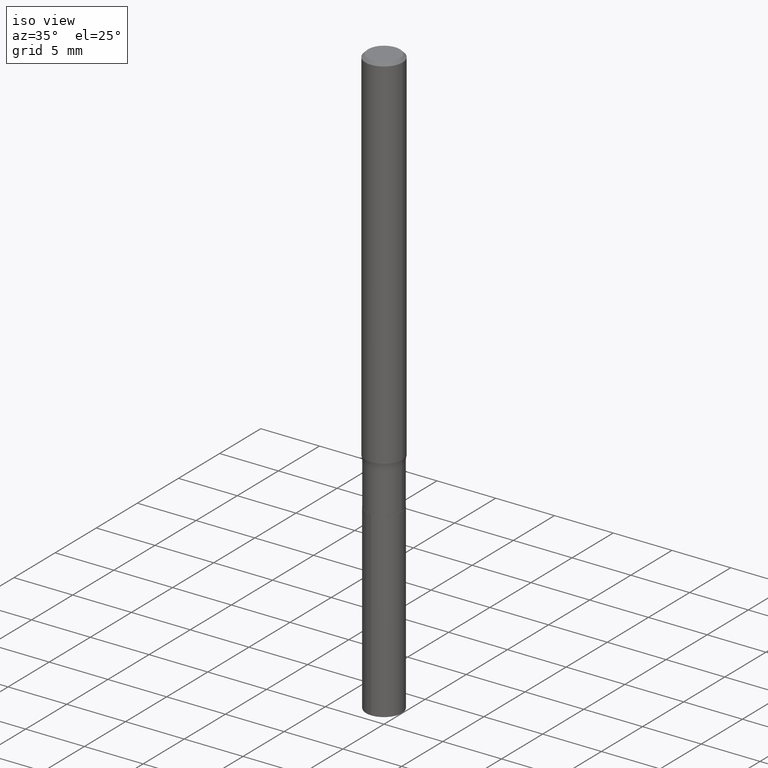
[diagram: clean part render]
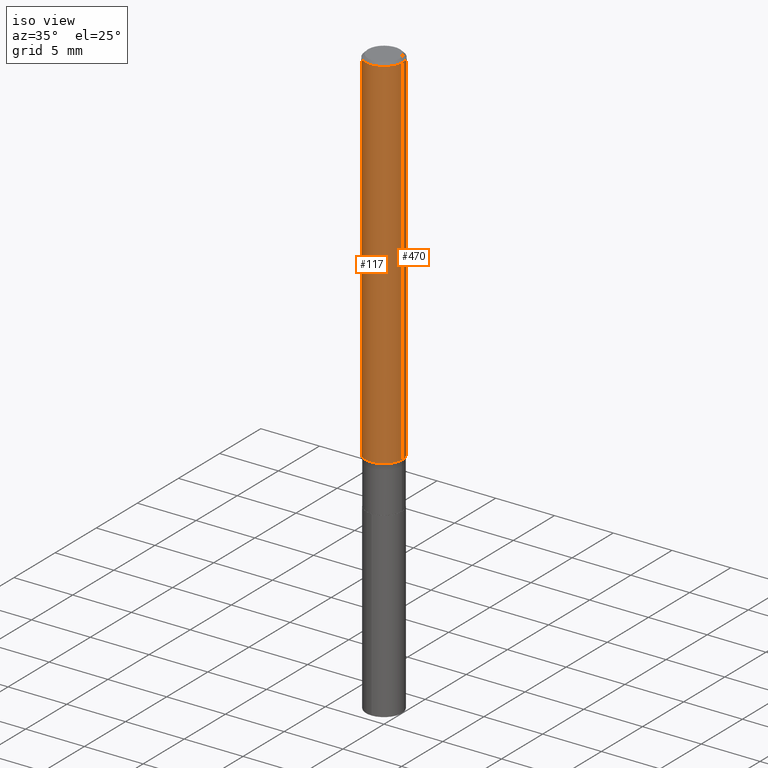
[diagram: same view with one multi-face feature highlighted, each face labeled with its STEP entity id]
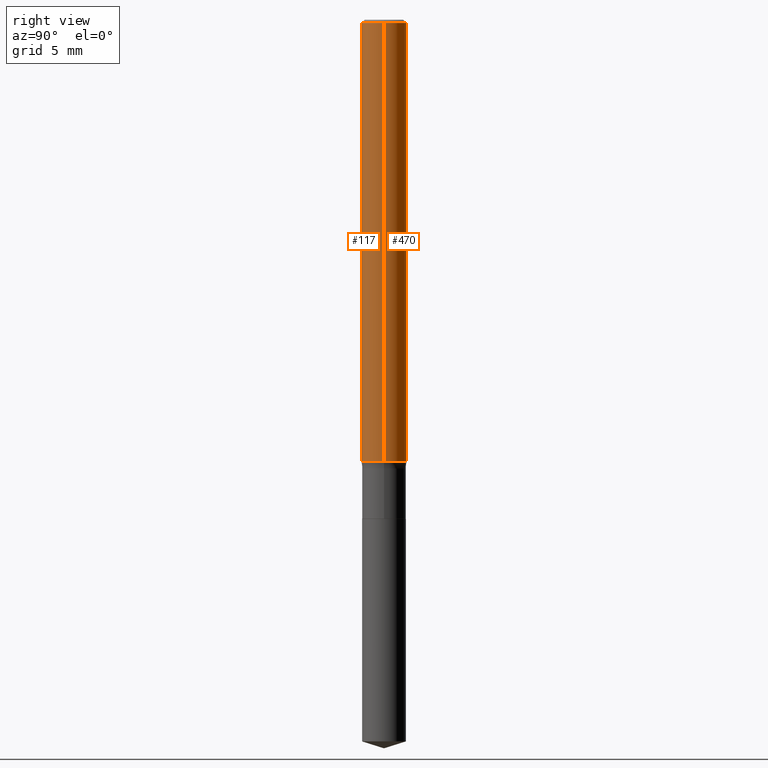
[diagram: same view with one multi-face feature highlighted, each face labeled with its STEP entity id]
A machine part, iso view. The highlighted faces form ONE feature: a constant-radius fillet chain: 2 tangent blend faces with common blend radius 1.5875 mm. The faces share edges in the B-rep.
A second angle (right view) of the same feature is appended — it is thin or edge-on in the first view.
Their STEP definitions:
[1] entity #470 (Cylinder):
#22 = AXIS2_PLACEMENT_3D ( 'NONE', #103, #449, #297 ) ;
#44 = ORIENTED_EDGE ( 'NONE', *, *, #435, .T. ) ;
#61 = DIRECTION ( 'NONE',  ( 1.000000000000000000, -6.982962677686266711E-15, 0.000000000000000000 ) ) ;
#62 = EDGE_CURVE ( 'NONE', #229, #153, #107, .T. ) ;
#63 = ORIENTED_EDGE ( 'NONE', *, *, #62, .T. ) ;
#78 = DIRECTION ( 'NONE',  ( -2.445468806185136877E-29, 3.491481338843145188E-15, 1.000000000000000000 ) ) ;
#99 = CARTESIAN_POINT ( 'NONE',  ( 2.292627005798581499E-31, -3.273263755165471417E-17, -0.009375000000000063838 ) ) ;
#100 = CIRCLE ( 'NONE', #113, 0.06250000000000000000 ) ;
#102 = LINE ( 'NONE', #218, #389 ) ;
#103 = CARTESIAN_POINT ( 'NONE',  ( 2.964911965054426097E-29, -4.233108503006840513E-15, -1.212410461975839571 ) ) ;
#105 = ORIENTED_EDGE ( 'NONE', *, *, #168, .F. ) ;
#107 = CIRCLE ( 'NONE', #22, 0.06250000000000013878 ) ;
#110 = EDGE_CURVE ( 'NONE', #229, #231, #102, .T. ) ;
#113 = AXIS2_PLACEMENT_3D ( 'NONE', #99, #248, #61 ) ;
#125 = DIRECTION ( 'NONE',  ( -2.445468806185136597E-29, 3.491481338843145583E-15, 1.000000000000000000 ) ) ;
#127 = VERTEX_POINT ( 'NONE', #179 ) ;
#135 = CARTESIAN_POINT ( 'NONE',  ( -0.06250000000000013878, -3.789019293156776319E-15, -1.212410461975839571 ) ) ;
#153 = VERTEX_POINT ( 'NONE', #135 ) ;
#168 = EDGE_CURVE ( 'NONE', #231, #127, #100, .T. ) ;
#179 = CARTESIAN_POINT ( 'NONE',  ( -0.06250000000000000000, -1.688831360429183546E-15, -0.009375000000000063838 ) ) ;
#185 = AXIS2_PLACEMENT_3D ( 'NONE', #283, #125, #238 ) ;
#190 = CARTESIAN_POINT ( 'NONE',  ( 0.06250000000000000000, -4.691678049070464390E-16, -0.009375000000000063838 ) ) ;
#199 = FACE_OUTER_BOUND ( 'NONE', #421, .T. ) ;
#218 = CARTESIAN_POINT ( 'NONE',  ( 0.06250000000000006939, -4.364351673553921624E-16, 3.047610484872463374E-30 ) ) ;
#229 = VERTEX_POINT ( 'NONE', #281 ) ;
#231 = VERTEX_POINT ( 'NONE', #190 ) ;
#238 = DIRECTION ( 'NONE',  ( 1.000000000000000000, -6.982962677686266711E-15, 4.876176775795935793E-29 ) ) ;
#248 = DIRECTION ( 'NONE',  ( -2.445468806185136597E-29, 3.491481338843145583E-15, 1.000000000000000000 ) ) ;
#281 = CARTESIAN_POINT ( 'NONE',  ( 0.06250000000000013878, -4.669543670362232971E-15, -1.212410461975839571 ) ) ;
#283 = CARTESIAN_POINT ( 'NONE',  ( 0.000000000000000000, 0.000000000000000000, 0.000000000000000000 ) ) ;
#296 = VECTOR ( 'NONE', #78, 39.37007874015748143 ) ;
#297 = DIRECTION ( 'NONE',  ( 1.000000000000000000, -6.982962677686262766E-15, 0.000000000000000000 ) ) ;
#317 = ORIENTED_EDGE ( 'NONE', *, *, #110, .F. ) ;
#389 = VECTOR ( 'NONE', #409, 39.37007874015748143 ) ;
#409 = DIRECTION ( 'NONE',  ( -2.445468806185136877E-29, 3.491481338843145188E-15, 1.000000000000000000 ) ) ;
#419 = CARTESIAN_POINT ( 'NONE',  ( -0.06250000000000006939, 4.440892098500631092E-16, -3.074334431409319267E-30 ) ) ;
#421 = EDGE_LOOP ( 'NONE', ( #63, #44, #105, #317 ) ) ;
#435 = EDGE_CURVE ( 'NONE', #153, #127, #465, .T. ) ;
#439 = CYLINDRICAL_SURFACE ( 'NONE', #185, 0.06250000000000006939 ) ;
#449 = DIRECTION ( 'NONE',  ( -2.445468806185136597E-29, 3.491481338843145583E-15, 1.000000000000000000 ) ) ;
#465 = LINE ( 'NONE', #419, #296 ) ;
#470 = ADVANCED_FACE ( 'NONE', ( #199 ), #439, .T. ) ;
[2] entity #117 (Cylinder):
#12 = CARTESIAN_POINT ( 'NONE',  ( 2.292627005798581499E-31, -3.273263755165471417E-17, -0.009375000000000063838 ) ) ;
#20 = FACE_OUTER_BOUND ( 'NONE', #313, .T. ) ;
#31 = DIRECTION ( 'NONE',  ( -2.445468806185136597E-29, 3.491481338843145583E-15, 1.000000000000000000 ) ) ;
#33 = DIRECTION ( 'NONE',  ( 1.000000000000000000, -6.982962677686266711E-15, 4.876176775795935793E-29 ) ) ;
#56 = DIRECTION ( 'NONE',  ( 1.000000000000000000, -6.982962677686266711E-15, 0.000000000000000000 ) ) ;
#78 = DIRECTION ( 'NONE',  ( -2.445468806185136877E-29, 3.491481338843145188E-15, 1.000000000000000000 ) ) ;
#93 = CIRCLE ( 'NONE', #369, 0.06250000000000013878 ) ;
#97 = CARTESIAN_POINT ( 'NONE',  ( 0.000000000000000000, 0.000000000000000000, 0.000000000000000000 ) ) ;
#102 = LINE ( 'NONE', #218, #389 ) ;
#110 = EDGE_CURVE ( 'NONE', #229, #231, #102, .T. ) ;
#117 = ADVANCED_FACE ( 'NONE', ( #20 ), #252, .T. ) ;
#127 = VERTEX_POINT ( 'NONE', #179 ) ;
#135 = CARTESIAN_POINT ( 'NONE',  ( -0.06250000000000013878, -3.789019293156776319E-15, -1.212410461975839571 ) ) ;
#153 = VERTEX_POINT ( 'NONE', #135 ) ;
#159 = DIRECTION ( 'NONE',  ( -2.445468806185136597E-29, 3.491481338843145583E-15, 1.000000000000000000 ) ) ;
#178 = AXIS2_PLACEMENT_3D ( 'NONE', #12, #159, #56 ) ;
#179 = CARTESIAN_POINT ( 'NONE',  ( -0.06250000000000000000, -1.688831360429183546E-15, -0.009375000000000063838 ) ) ;
#190 = CARTESIAN_POINT ( 'NONE',  ( 0.06250000000000000000, -4.691678049070464390E-16, -0.009375000000000063838 ) ) ;
#197 = EDGE_CURVE ( 'NONE', #127, #231, #398, .T. ) ;
#218 = CARTESIAN_POINT ( 'NONE',  ( 0.06250000000000006939, -4.364351673553921624E-16, 3.047610484872463374E-30 ) ) ;
#229 = VERTEX_POINT ( 'NONE', #281 ) ;
#231 = VERTEX_POINT ( 'NONE', #190 ) ;
#252 = CYLINDRICAL_SURFACE ( 'NONE', #332, 0.06250000000000006939 ) ;
#267 = ORIENTED_EDGE ( 'NONE', *, *, #197, .F. ) ;
#269 = ORIENTED_EDGE ( 'NONE', *, *, #341, .T. ) ;
#273 = ORIENTED_EDGE ( 'NONE', *, *, #110, .T. ) ;
#281 = CARTESIAN_POINT ( 'NONE',  ( 0.06250000000000013878, -4.669543670362232971E-15, -1.212410461975839571 ) ) ;
#296 = VECTOR ( 'NONE', #78, 39.37007874015748143 ) ;
#313 = EDGE_LOOP ( 'NONE', ( #394, #269, #273, #267 ) ) ;
#332 = AXIS2_PLACEMENT_3D ( 'NONE', #97, #375, #33 ) ;
#334 = DIRECTION ( 'NONE',  ( 1.000000000000000000, -6.982962677686262766E-15, 0.000000000000000000 ) ) ;
#341 = EDGE_CURVE ( 'NONE', #153, #229, #93, .T. ) ;
#369 = AXIS2_PLACEMENT_3D ( 'NONE', #410, #31, #334 ) ;
#375 = DIRECTION ( 'NONE',  ( -2.445468806185136597E-29, 3.491481338843145583E-15, 1.000000000000000000 ) ) ;
#389 = VECTOR ( 'NONE', #409, 39.37007874015748143 ) ;
#394 = ORIENTED_EDGE ( 'NONE', *, *, #435, .F. ) ;
#398 = CIRCLE ( 'NONE', #178, 0.06250000000000000000 ) ;
#409 = DIRECTION ( 'NONE',  ( -2.445468806185136877E-29, 3.491481338843145188E-15, 1.000000000000000000 ) ) ;
#410 = CARTESIAN_POINT ( 'NONE',  ( 2.964911965054426097E-29, -4.233108503006840513E-15, -1.212410461975839571 ) ) ;
#419 = CARTESIAN_POINT ( 'NONE',  ( -0.06250000000000006939, 4.440892098500631092E-16, -3.074334431409319267E-30 ) ) ;
#435 = EDGE_CURVE ( 'NONE', #153, #127, #465, .T. ) ;
#465 = LINE ( 'NONE', #419, #296 ) ;